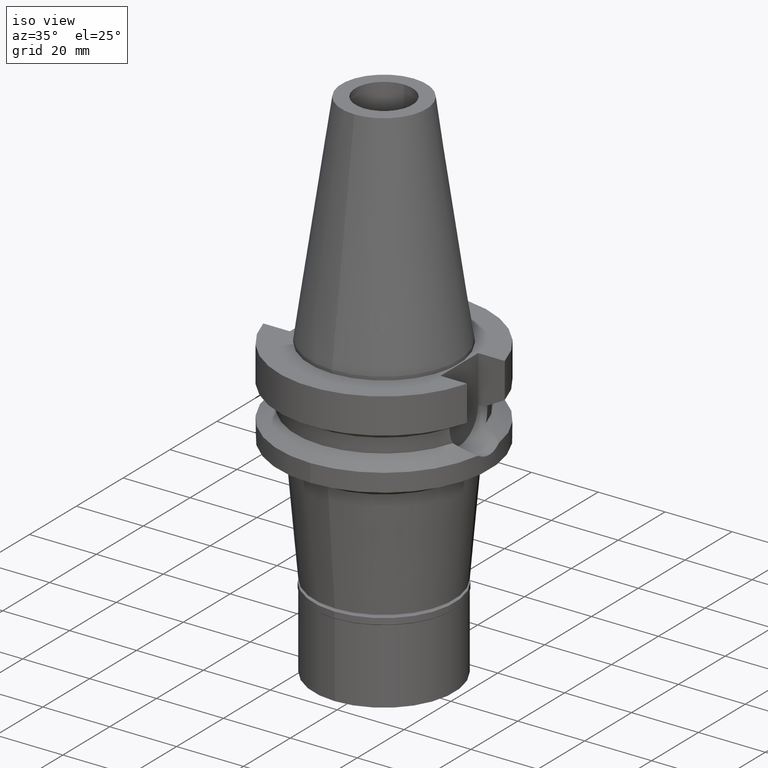
[diagram: clean part render]
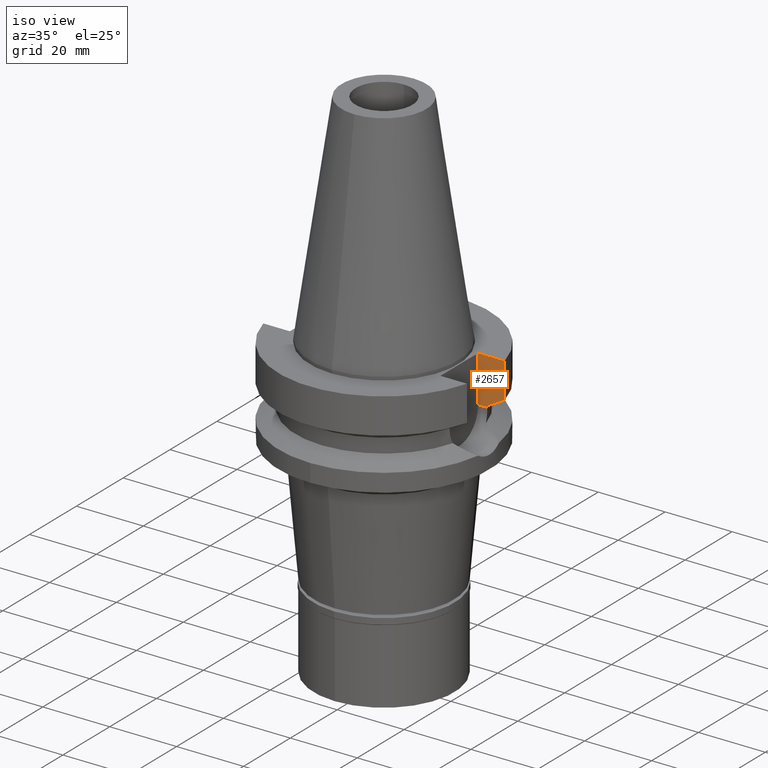
[diagram: same view with one face highlighted and labeled with its STEP entity id]
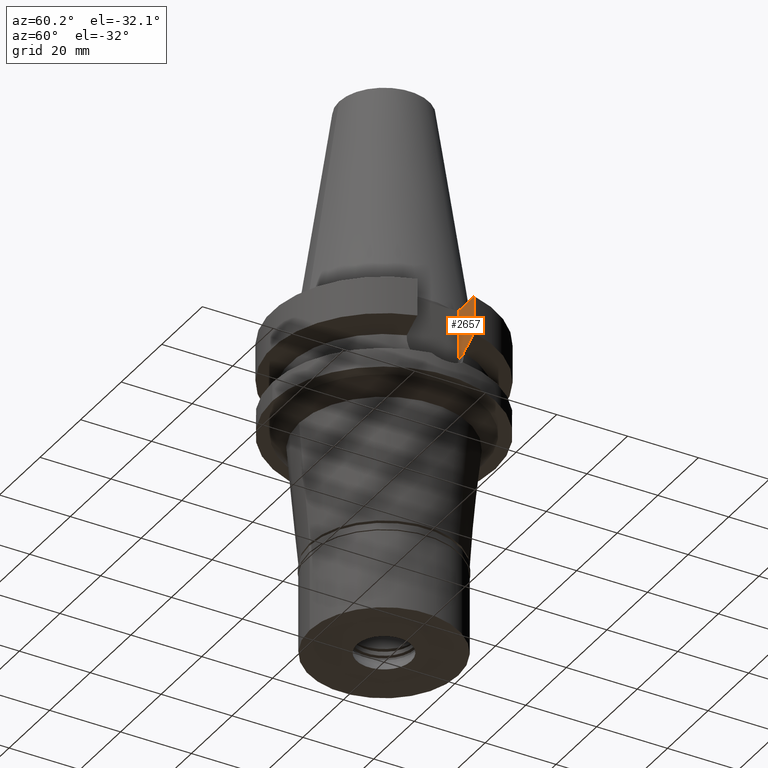
[diagram: same view with one face highlighted and labeled with its STEP entity id]
A machine part, iso view. The second image highlights one B-rep face of the part: STEP entity #2657.
A second angle (auxiliary view) of the same face is appended — the face is thin or edge-on in the first view.
In plain terms, the highlighted planar face has unit normal (0, 1, 0).
Its self-contained STEP definition (entity closure, byte-faithful):
#35 = CARTESIAN_POINT ( 'NONE',  ( 22.50000000000000000, 8.050000000000000711, -14.94999999999999929 ) ) ;
#96 = DIRECTION ( 'NONE',  ( 1.000000000000000000, -1.551559937893000172E-14, 0.0000000000000000000 ) ) ;
#133 = ORIENTED_EDGE ( 'NONE', *, *, #3084, .T. ) ;
#162 = EDGE_CURVE ( 'NONE', #1014, #273, #550, .T. ) ;
#215 = ORIENTED_EDGE ( 'NONE', *, *, #162, .T. ) ;
#257 = ORIENTED_EDGE ( 'NONE', *, *, #2424, .F. ) ;
#273 = VERTEX_POINT ( 'NONE', #562 ) ;
#362 = DIRECTION ( 'NONE',  ( 0.0000000000000000000, 0.0000000000000000000, -1.000000000000000000 ) ) ;
#412 = CARTESIAN_POINT ( 'NONE',  ( 25.24772266958000344, 8.050000000000000711, -14.94999999999999929 ) ) ;
#479 = VECTOR ( 'NONE', #2543, 1000.000000000000114 ) ;
#481 = VECTOR ( 'NONE', #362, 1000.000000000000000 ) ;
#550 = LINE ( 'NONE', #2021, #479 ) ;
#562 = CARTESIAN_POINT ( 'NONE',  ( 30.45402272279000044, 8.050000000000000711, -1.000000000000000000 ) ) ;
#634 = EDGE_CURVE ( 'NONE', #1214, #273, #1714, .T. ) ;
#813 = EDGE_LOOP ( 'NONE', ( #257, #215, #3087, #1347, #2098, #133 ) ) ;
#830 = B_SPLINE_CURVE_WITH_KNOTS ( 'NONE', 3,
 ( #1782, #1033, #2005, #1311 ),
 .UNSPECIFIED., .F., .F.,
 ( 4, 4 ),
 ( 0.0000000000000000000, 1.000000000000000000 ),
 .UNSPECIFIED. ) ;
#911 = VERTEX_POINT ( 'NONE', #2498 ) ;
#1014 = VERTEX_POINT ( 'NONE', #2097 ) ;
#1016 = DIRECTION ( 'NONE',  ( 1.000000000000000000, -3.506251283225999947E-14, 0.0000000000000000000 ) ) ;
#1033 = CARTESIAN_POINT ( 'NONE',  ( 28.57292325961556401, 8.049998553931823508, -12.61549607296751141 ) ) ;
#1214 = VERTEX_POINT ( 'NONE', #2892 ) ;
#1311 = CARTESIAN_POINT ( 'NONE',  ( 25.24772413222000012, 8.049995412611998802, -14.45229205223999891 ) ) ;
#1334 = CARTESIAN_POINT ( 'NONE',  ( 25.24772266958000344, 8.050000000000000711, -14.94999999999999929 ) ) ;
#1347 = ORIENTED_EDGE ( 'NONE', *, *, #2976, .T. ) ;
#1385 = DIRECTION ( 'NONE',  ( 2.938761059605014897E-06, -9.217027461488049792E-06, 0.9999999999532049877 ) ) ;
#1406 = CARTESIAN_POINT ( 'NONE',  ( 22.50000000000000000, 8.050000000000000711, -14.94999999999999929 ) ) ;
#1499 = LINE ( 'NONE', #35, #2685 ) ;
#1671 = DIRECTION ( 'NONE',  ( -0.0000000000000000000, 1.000000000000000000, 0.0000000000000000000 ) ) ;
#1714 = LINE ( 'NONE', #2693, #1752 ) ;
#1752 = VECTOR ( 'NONE', #1016, 1000.000000000000000 ) ;
#1782 = CARTESIAN_POINT ( 'NONE',  ( 30.45402291402999850, 8.049999276495000800, -11.56551216911999980 ) ) ;
#1835 = EDGE_CURVE ( 'NONE', #2267, #2931, #1499, .T. ) ;
#1924 = PLANE ( 'NONE',  #2577 ) ;
#2005 = CARTESIAN_POINT ( 'NONE',  ( 26.83754612812102280, 8.049990815062949778, -13.57774889971515186 ) ) ;
#2021 = CARTESIAN_POINT ( 'NONE',  ( 30.45402291402999850, 8.049999276495000800, -11.56551216911999980 ) ) ;
#2097 = CARTESIAN_POINT ( 'NONE',  ( 30.45402291402999850, 8.049999276495000800, -11.56551216911999980 ) ) ;
#2098 = ORIENTED_EDGE ( 'NONE', *, *, #1835, .T. ) ;
#2111 = LINE ( 'NONE', #412, #2968 ) ;
#2115 = DIRECTION ( 'NONE',  ( 1.000000000000000000, 0.0000000000000000000, 0.0000000000000000000 ) ) ;
#2267 = VERTEX_POINT ( 'NONE', #1406 ) ;
#2424 = EDGE_CURVE ( 'NONE', #1014, #911, #830, .T. ) ;
#2498 = CARTESIAN_POINT ( 'NONE',  ( 25.24772413222000012, 8.049995412611998802, -14.45229205223999891 ) ) ;
#2543 = DIRECTION ( 'NONE',  ( -1.810090655191990630E-08, 6.847793019877962444E-08, 0.9999999999999974465 ) ) ;
#2577 = AXIS2_PLACEMENT_3D ( 'NONE', #3096, #1671, #2115 ) ;
#2638 = FACE_OUTER_BOUND ( 'NONE', #813, .T. ) ;
#2657 = ADVANCED_FACE ( 'NONE', ( #2638 ), #1924, .F. ) ;
#2685 = VECTOR ( 'NONE', #96, 1000.000000000000000 ) ;
#2693 = CARTESIAN_POINT ( 'NONE',  ( 22.50000000000000000, 8.050000000000000711, -1.000000000000000000 ) ) ;
#2763 = LINE ( 'NONE', #3001, #481 ) ;
#2892 = CARTESIAN_POINT ( 'NONE',  ( 22.50000000000000000, 8.050000000000000711, -1.000000000000000000 ) ) ;
#2931 = VERTEX_POINT ( 'NONE', #1334 ) ;
#2968 = VECTOR ( 'NONE', #1385, 1000.000000000000227 ) ;
#2976 = EDGE_CURVE ( 'NONE', #1214, #2267, #2763, .T. ) ;
#3001 = CARTESIAN_POINT ( 'NONE',  ( 22.50000000000000000, 8.050000000000000711, -1.000000000000000000 ) ) ;
#3084 = EDGE_CURVE ( 'NONE', #2931, #911, #2111, .T. ) ;
#3087 = ORIENTED_EDGE ( 'NONE', *, *, #634, .F. ) ;
#3096 = CARTESIAN_POINT ( 'NONE',  ( 22.50000000000000000, 8.050000000000000711, -14.94999999999999929 ) ) ;